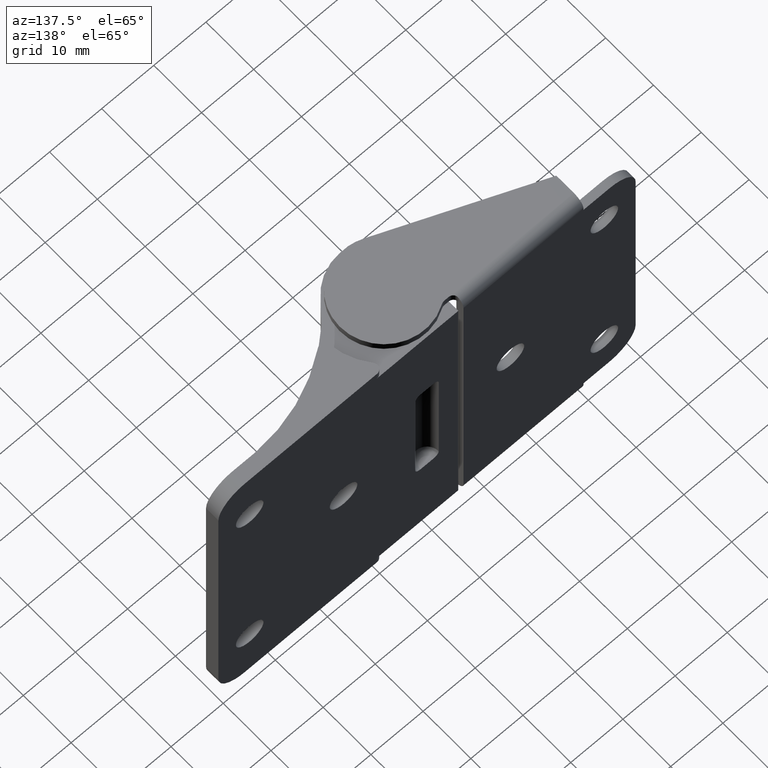
[diagram: clean part render]
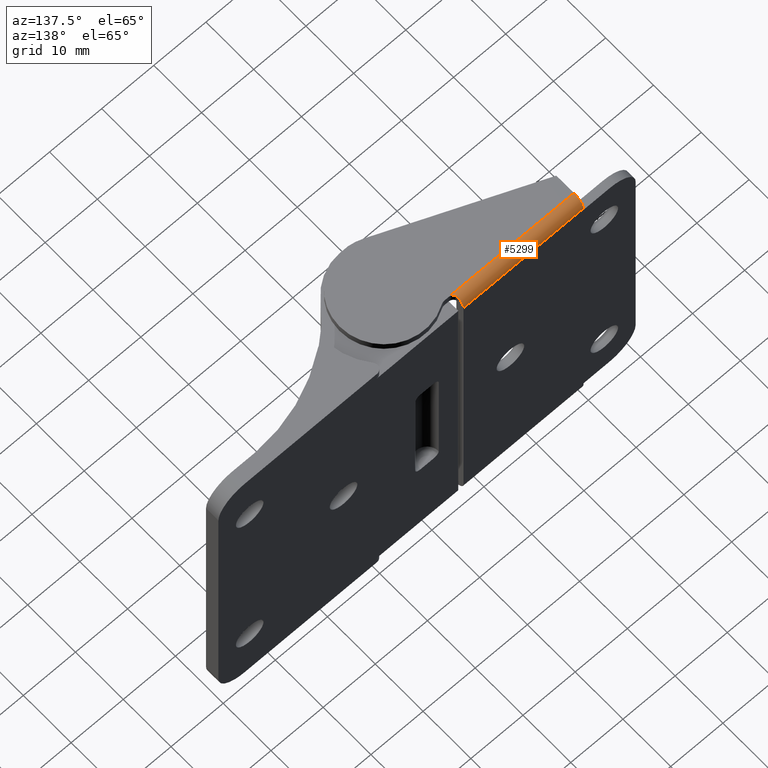
[diagram: same view with one face highlighted and labeled with its STEP entity id]
A machine part, auxiliary view. The second image highlights one B-rep face of the part: STEP entity #5299.
In plain terms, the highlighted face is a freeform B-spline surface patch.
Its self-contained STEP definition (entity closure, byte-faithful):
#5211=CARTESIAN_POINT('',(-5.400015174999786,8.999314649951113,60.947646103384251));
#5212=CARTESIAN_POINT('',(-30.615007820624911,8.999314649951113,60.947646103384251));
#5213=CARTESIAN_POINT('',(-5.400015174999786,9.056448902391987,63.129515177188232));
#5214=CARTESIAN_POINT('',(-30.615007820624911,9.056448902391987,63.129515177188232));
#5215=CARTESIAN_POINT('',(-5.400015174999786,6.877902920930296,62.996269596843732));
#5216=CARTESIAN_POINT('',(-30.615007820624911,6.877902920930296,62.996269596843732));
#5224=(BOUNDED_SURFACE()B_SPLINE_SURFACE(1,2,((#5211,#5213,#5215),(#5212,#5214,#5216)),.UNSPECIFIED.,.F.,.F.,.U.)B_SPLINE_SURFACE_WITH_KNOTS((2,2),(3,3),(0.0,25.214992645625120),(0.0,3.520084247134652),.UNSPECIFIED.)GEOMETRIC_REPRESENTATION_ITEM()RATIONAL_B_SPLINE_SURFACE(((1.0,0.675590207615660,1.0),(1.0,0.675590207615660,1.0)))REPRESENTATION_ITEM('')SURFACE());
#5225=CARTESIAN_POINT('',(-7.000014999999790,9.0,61.0));
#5226=VERTEX_POINT('',#5225);
#5227=CARTESIAN_POINT('',(-7.000014999999790,8.000000087266461,62.732050757185512));
#5228=VERTEX_POINT('',#5227);
#5229=CARTESIAN_POINT('',(-7.000014999999790,9.000000000000002,61.0));
#5230=CARTESIAN_POINT('',(-7.000014999999790,9.000000000000002,62.154700471201473));
#5231=CARTESIAN_POINT('',(-7.000014999999790,8.000000087266482,62.732050757185547));
#5239=(BOUNDED_CURVE()B_SPLINE_CURVE(2,(#5229,#5230,#5231),.UNSPECIFIED.,.F.,.U.)CURVE()GEOMETRIC_REPRESENTATION_ITEM()QUASI_UNIFORM_CURVE()RATIONAL_B_SPLINE_CURVE((1.0,0.866025416380270,1.0))REPRESENTATION_ITEM(''));
#5240=EDGE_CURVE('',#5226,#5228,#5239,.T.);
#5241=ORIENTED_EDGE('',*,*,#5240,.F.);
#5242=CARTESIAN_POINT('',(-30.000007999999902,9.0,61.0));
#5243=VERTEX_POINT('',#5242);
#5244=CARTESIAN_POINT('',(-30.000007999999902,9.0,61.0));
#5245=CARTESIAN_POINT('',(-7.000014999999790,9.0,61.0));
#5246=QUASI_UNIFORM_CURVE('',1,(#5244,#5245),.UNSPECIFIED.,.F.,.U.);
#5247=EDGE_CURVE('',#5243,#5226,#5246,.T.);
#5248=ORIENTED_EDGE('',*,*,#5247,.F.);
#5249=CARTESIAN_POINT('',(-30.000007999999902,7.0,63.0));
#5250=VERTEX_POINT('',#5249);
#5251=CARTESIAN_POINT('',(-30.000007999999902,7.0,63.0));
#5252=CARTESIAN_POINT('',(-30.000007999999909,9.000000000000002,63.0));
#5253=CARTESIAN_POINT('',(-30.000007999999902,9.000000000000002,61.0));
#5261=(BOUNDED_CURVE()B_SPLINE_CURVE(2,(#5251,#5252,#5253),.UNSPECIFIED.,.F.,.U.)CURVE()GEOMETRIC_REPRESENTATION_ITEM()QUASI_UNIFORM_CURVE()RATIONAL_B_SPLINE_CURVE((1.0,0.707106781186548,1.0))REPRESENTATION_ITEM(''));
#5262=EDGE_CURVE('',#5250,#5243,#5261,.T.);
#5263=ORIENTED_EDGE('',*,*,#5262,.F.);
#5264=CARTESIAN_POINT('',(-6.000014999999790,7.0,63.0));
#5265=VERTEX_POINT('',#5264);
#5266=CARTESIAN_POINT('',(-6.000014999999790,7.0,63.0));
#5267=CARTESIAN_POINT('',(-30.000007999999902,7.0,63.0));
#5268=QUASI_UNIFORM_CURVE('',1,(#5266,#5267),.UNSPECIFIED.,.F.,.U.);
#5269=EDGE_CURVE('',#5265,#5250,#5268,.T.);
#5270=ORIENTED_EDGE('',*,*,#5269,.F.);
#5271=CARTESIAN_POINT('',(-7.000014999999790,8.000000087266461,62.732050757185512));
#5272=CARTESIAN_POINT('',(-7.000015005128642,7.941227786443643,62.765982964834670));
#5273=CARTESIAN_POINT('',(-6.994869954830443,7.881594910923924,62.796430948186973));
#5274=CARTESIAN_POINT('',(-6.978441320744025,7.791143658361896,62.837167696884649));
#5275=CARTESIAN_POINT('',(-6.971506792205886,7.760826501525022,62.849922515379987));
#5276=CARTESIAN_POINT('',(-6.954451691857789,7.699915235422169,62.873816677681297));
#5277=CARTESIAN_POINT('',(-6.944312691035271,7.669348419049316,62.884932214483449));
#5278=CARTESIAN_POINT('',(-6.909620742423999,7.579605206423817,62.915214045951728));
#5279=CARTESIAN_POINT('',(-6.880637909659916,7.521614724807753,62.931632664035362));
#5280=CARTESIAN_POINT('',(-6.827799674864113,7.437985919041703,62.951663393671652));
#5281=CARTESIAN_POINT('',(-6.808480303236254,7.410509531138290,62.957600758108967));
#5282=CARTESIAN_POINT('',(-6.767352139694530,7.357887180114642,62.967901310943653));
#5283=CARTESIAN_POINT('',(-6.723739169499392,7.307506491219361,62.976668222788383));
#5284=CARTESIAN_POINT('',(-6.675233091362939,7.261620045831579,62.982936345387436));
#5285=CARTESIAN_POINT('',(-6.624252516533103,7.218046068764808,62.988199564967168));
#5286=CARTESIAN_POINT('',(-6.597375956868357,7.197315495152019,62.990336708972237));
#5287=CARTESIAN_POINT('',(-6.514028368563104,7.139558040659280,62.995499444280917));
#5288=CARTESIAN_POINT('',(-6.455324520969652,7.107135417365303,62.997303744871431));
#5289=CARTESIAN_POINT('',(-6.331796130414751,7.054254154484510,62.999439104762260));
#5290=CARTESIAN_POINT('',(-6.266458529526592,7.033810237104317,62.999759634432479));
#5291=CARTESIAN_POINT('',(-6.134805903415198,7.006850351302701,63.000033699797491));
#5292=CARTESIAN_POINT('',(-6.067944853325249,7.0,62.999999999999993));
#5293=CARTESIAN_POINT('',(-6.000014999999790,7.0,63.0));
#5294=B_SPLINE_CURVE_WITH_KNOTS('',3,(#5271,#5272,#5273,#5274,#5275,#5276,#5277,#5278,#5279,#5280,#5281,#5282,#5283,#5284,#5285,#5286,#5287,#5288,#5289,#5290,#5291,#5292,#5293),.UNSPECIFIED.,.F.,.U.,(4,2,2,2,2,2,1,2,2,2,2,4),(0.0,0.124999999999994,0.187499999999992,0.249999999999990,0.374999999999994,0.437499999999995,0.499999999999995,0.562499999999996,0.624999999999996,0.749999999999998,0.874999999999999,1.0),.UNSPECIFIED.);
#5295=EDGE_CURVE('',#5228,#5265,#5294,.T.);
#5296=ORIENTED_EDGE('',*,*,#5295,.F.);
#5297=EDGE_LOOP('',(#5241,#5248,#5263,#5270,#5296));
#5298=FACE_OUTER_BOUND('',#5297,.T.);
#5299=ADVANCED_FACE('',(#5298),#5224,.T.);